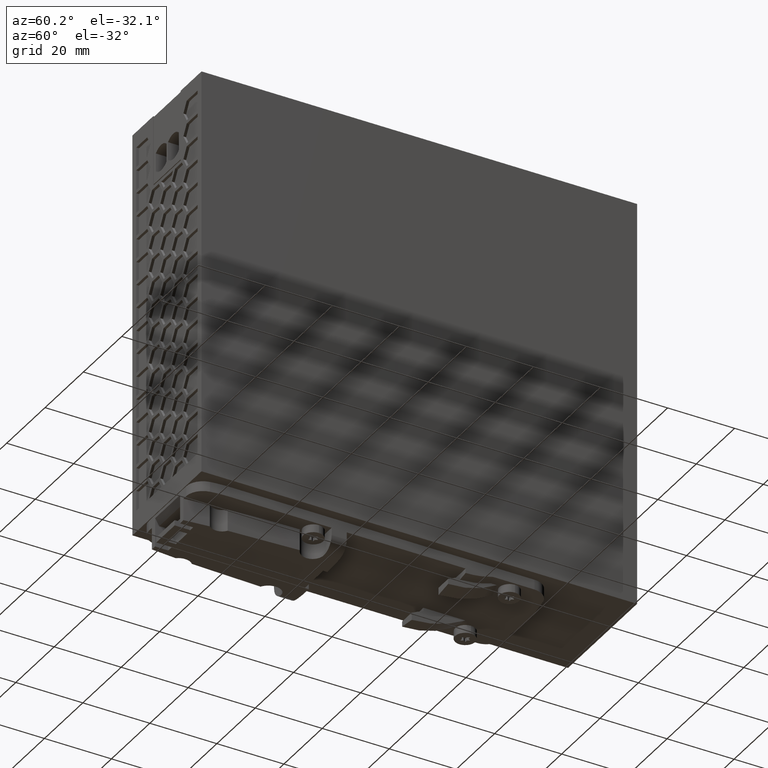
[diagram: clean part render]
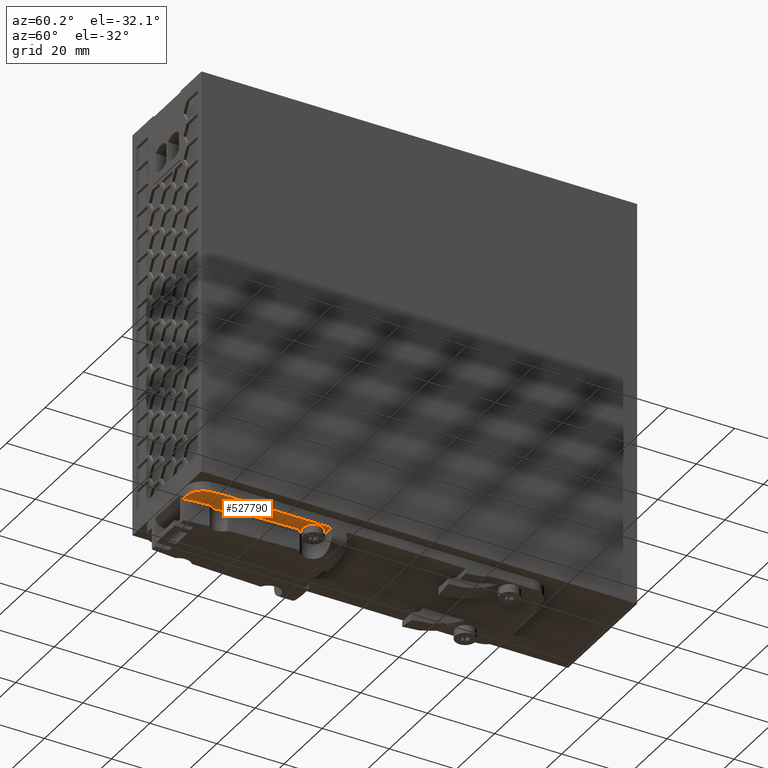
[diagram: same view with one face highlighted and labeled with its STEP entity id]
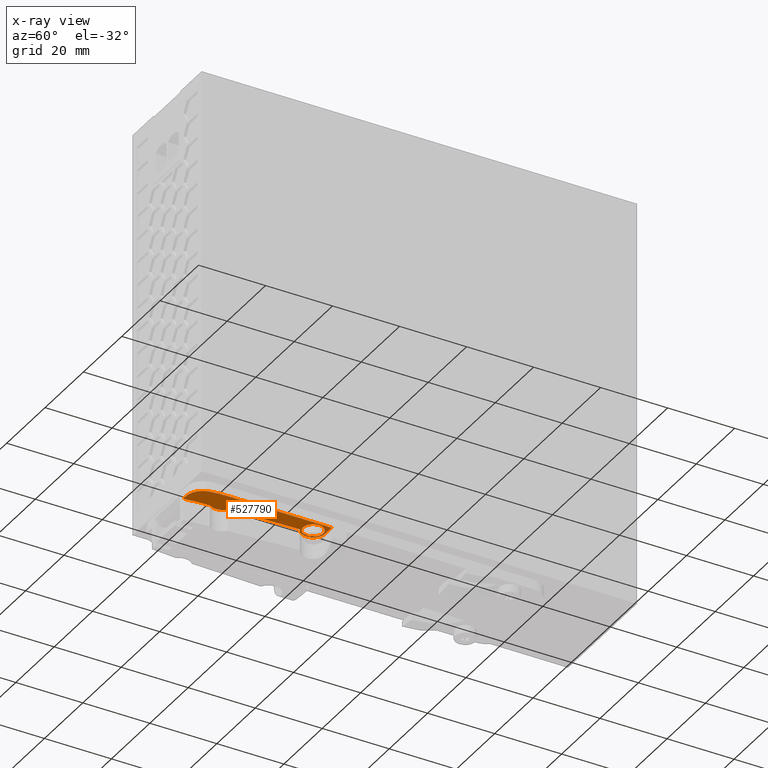
[diagram: x-ray of the same camera — body ghosted, the highlighted face saturated]
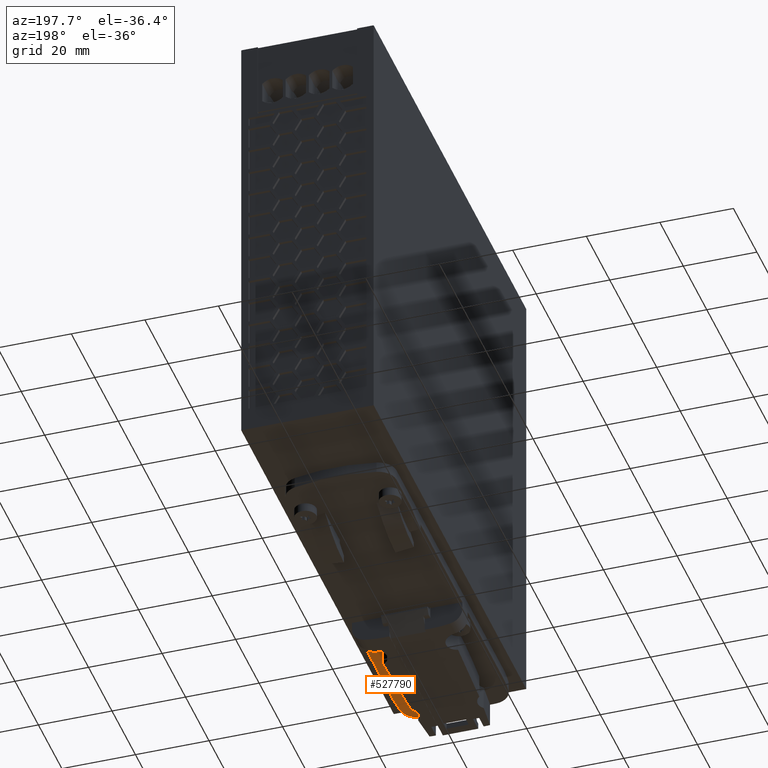
[diagram: same view with one face highlighted and labeled with its STEP entity id]
A machine part, auxiliary view. The second image highlights one B-rep face of the part: STEP entity #527790.
The next image is the same camera in x-ray: the body ghosted, the highlighted face saturated — about 0% of this face is hidden behind the body in this view.
A second angle (auxiliary view) of the same face is appended — the face is thin or edge-on in the first view.
In plain terms, the highlighted planar face has unit normal (0, 0, -1).
Its self-contained STEP definition (entity closure, byte-faithful):
#461250=CARTESIAN_POINT('',(27.6429025759224,0.198853703293764,
6.59999999999972));
#461260=VERTEX_POINT('',#461250);
#461290=CARTESIAN_POINT('',(0.00178708709996157,0.198473725847947,
6.59999999999972));
#461300=DIRECTION('',(0.999999999905513,1.37468202386569E-5,
5.47171506743298E-60));
#461310=VECTOR('',#461300,1.);
#461320=LINE('',#461290,#461310);
#461330=CARTESIAN_POINT('',(26.218370185678,0.198834120503079,
6.59999999999972));
#461340=VERTEX_POINT('',#461330);
#461350=EDGE_CURVE('',#461340,#461260,#461320,.T.);
#462520=CARTESIAN_POINT('',(33.001331739842,40.5489273684688,
6.59999999999972));
#462530=VERTEX_POINT('',#462520);
#462560=CARTESIAN_POINT('',(33.0001130694827,129.2,6.59999999999972));
#462570=DIRECTION('',(1.37468202358229E-5,-0.999999999905513,
3.26265223505973E-55));
#462580=VECTOR('',#462570,1.);
#462590=LINE('',#462560,#462580);
#462600=CARTESIAN_POINT('',(33.0017489558362,10.1989273713365,
6.59999999999972));
#462610=VERTEX_POINT('',#462600);
#462620=EDGE_CURVE('',#462530,#462610,#462590,.T.);
#526800=CARTESIAN_POINT('',(-6.99825104038126,10.1983774985268,
6.59999999999972));
#526810=DIRECTION('',(9.95682444457783E-60,-3.26265223399926E-55,-1.));
#526820=DIRECTION('',(-1.,1.38913403349705E-19,-9.95682444457783E-60));
#526830=AXIS2_PLACEMENT_3D('',#526800,#526810,#526820);
#526840=CIRCLE('',#526830,39.9999999999969);
#526850=CARTESIAN_POINT('',(32.5915602535649,4.4846360177205,
6.59999999999972));
#526860=VERTEX_POINT('',#526850);
#526870=EDGE_CURVE('',#462610,#526860,#526840,.T.);
#527050=CARTESIAN_POINT('',(33.860805814384,-3.83617520429354,
6.59999999999972));
#527060=DIRECTION('',(9.95682444457778E-60,-3.26265223399926E-55,-1.));
#527070=DIRECTION('',(-1.,1.38913403349705E-19,-9.95682444457783E-60));
#527080=AXIS2_PLACEMENT_3D('',#527050,#527060,#527070);
#527090=PLANE('',#527080);
#527100=CARTESIAN_POINT('',(29.5013798540436,37.0488792549287,
6.59999999999972));
#527110=DIRECTION('',(9.95682444457783E-60,-3.26265223399926E-55,-1.));
#527120=DIRECTION('',(-1.,1.38913403349705E-19,-9.95682444457783E-60));
#527130=AXIS2_PLACEMENT_3D('',#527100,#527110,#527120);
#527140=CIRCLE('',#527130,3.49999999999999);
#527150=CARTESIAN_POINT('',(28.2357244112665,33.7857341003012,
6.59999999999972));
#527160=VERTEX_POINT('',#527150);
#527170=CARTESIAN_POINT('',(29.501069086508,40.5488792509873,
6.59999999999972));
#527180=VERTEX_POINT('',#527170);
#527190=EDGE_CURVE('',#527160,#527180,#527140,.T.);
#527200=ORIENTED_EDGE('',*,*,#527190,.T.);
#527210=CARTESIAN_POINT('',(-373.198675095222,41.0433434100426,
6.59999999999972));
#527220=DIRECTION('',(9.95682444457783E-60,-3.26265223399926E-55,-1.));
#527230=DIRECTION('',(-1.,1.38913403349705E-19,-9.95682444457783E-60));
#527240=AXIS2_PLACEMENT_3D('',#527210,#527220,#527230);
#527250=CIRCLE('',#527240,401.500000000035);
#527260=CARTESIAN_POINT('',(27.304840790004,12.7735050022907,
6.59999999999972));
#527270=VERTEX_POINT('',#527260);
#527280=EDGE_CURVE('',#527160,#527270,#527250,.T.);
#527290=ORIENTED_EDGE('',*,*,#527280,.F.);
#527300=CARTESIAN_POINT('',(29.5017510181899,10.0488792574798,
6.59999999999972));
#527310=DIRECTION('',(9.95682444457783E-60,-3.26265223399926E-55,-1.));
#527320=DIRECTION('',(-1.,1.38913403349705E-19,-9.95682444457783E-60));
#527330=AXIS2_PLACEMENT_3D('',#527300,#527310,#527320);
#527340=CIRCLE('',#527330,3.49999999999993);
#527350=CARTESIAN_POINT('',(26.9137756270187,7.69252967079017,
6.59999999999972));
#527360=VERTEX_POINT('',#527350);
#527370=EDGE_CURVE('',#527360,#527270,#527340,.T.);
#527380=ORIENTED_EDGE('',*,*,#527370,.T.);
#527390=CARTESIAN_POINT('',(-373.198675095112,41.0433434100267,
6.59999999999972));
#527400=DIRECTION('',(9.95682444457783E-60,-3.26265223399926E-55,-1.));
#527410=DIRECTION('',(-1.,1.38913403349705E-19,-9.95682444457783E-60));
#527420=AXIS2_PLACEMENT_3D('',#527390,#527400,#527410);
#527430=CIRCLE('',#527420,401.499999999923);
#527440=EDGE_CURVE('',#527360,#461340,#527430,.T.);
#527450=ORIENTED_EDGE('',*,*,#527440,.F.);
#527460=ORIENTED_EDGE('',*,*,#461350,.F.);
#527470=CARTESIAN_POINT('',(27.6428338418213,5.19885370282137,
6.59999999999972));
#527480=DIRECTION('',(9.95682444457783E-60,-3.26265223399926E-55,-1.));
#527490=DIRECTION('',(-1.,1.38913403349705E-19,-9.95682444457783E-60));
#527500=AXIS2_PLACEMENT_3D('',#527470,#527480,#527490);
#527510=CIRCLE('',#527500,4.99999999999991);
#527520=EDGE_CURVE('',#526860,#461260,#527510,.T.);
#527530=ORIENTED_EDGE('',*,*,#527520,.T.);
#527540=ORIENTED_EDGE('',*,*,#526870,.T.);
#527550=ORIENTED_EDGE('',*,*,#462620,.T.);
#527560=CARTESIAN_POINT('',(0.00178708709996158,40.5484737296605,
6.59999999999972));
#527570=DIRECTION('',(-0.999999999905512,-1.37468202397841E-5,
-5.47171506706521E-60));
#527580=VECTOR('',#527570,1.);
#527590=LINE('',#527560,#527580);
#527600=EDGE_CURVE('',#462530,#527180,#527590,.T.);
#527610=ORIENTED_EDGE('',*,*,#527600,.F.);
#527620=EDGE_LOOP('',(#527610,#527550,#527540,#527530,#527460,#527450,
#527380,#527290,#527200));
#527630=FACE_OUTER_BOUND('',#527620,.T.);
#527640=CARTESIAN_POINT('',(29.5013798540435,37.0488792549287,
6.59999999999972));
#527650=DIRECTION('',(9.95682444457783E-60,-3.26265223399926E-55,-1.));
#527660=DIRECTION('',(-1.,1.38913403349705E-19,-9.95682444457783E-60));
#527670=AXIS2_PLACEMENT_3D('',#527640,#527650,#527660);
#527680=CIRCLE('',#527670,2.99999999999998);
#527690=CARTESIAN_POINT('',(32.5013798540435,37.0488792549287,
6.59999999999972));
#527700=VERTEX_POINT('',#527690);
#527710=CARTESIAN_POINT('',(26.5013798540436,37.0488792549287,
6.59999999999972));
#527720=VERTEX_POINT('',#527710);
#527730=EDGE_CURVE('',#527700,#527720,#527680,.T.);
#527740=ORIENTED_EDGE('',*,*,#527730,.F.);
#527750=EDGE_CURVE('',#527720,#527700,#527680,.T.);
#527760=ORIENTED_EDGE('',*,*,#527750,.F.);
#527770=EDGE_LOOP('',(#527760,#527740));
#527780=FACE_BOUND('',#527770,.T.);
#527790=ADVANCED_FACE('',(#527630,#527780),#527090,.T.);